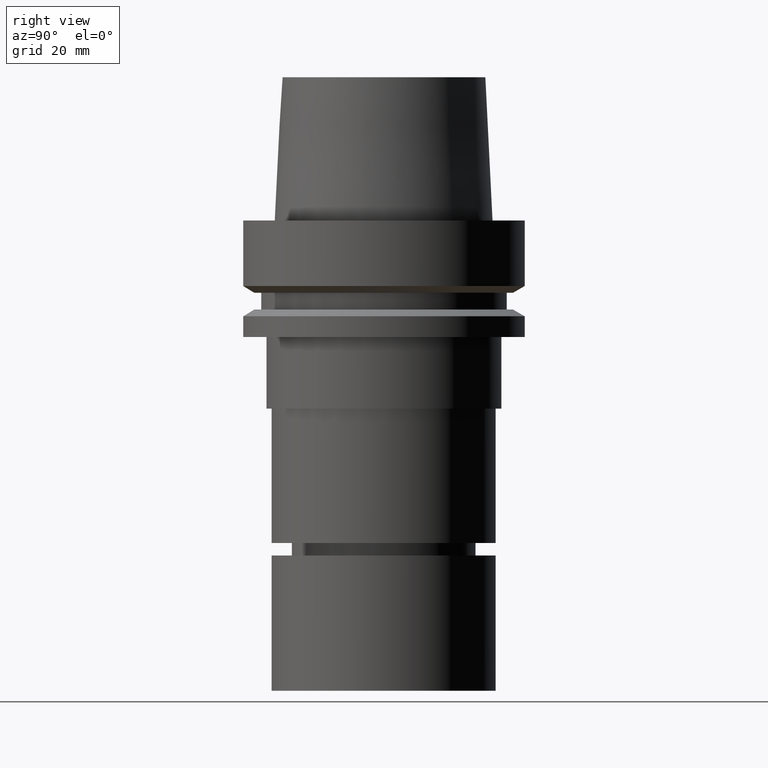
[diagram: clean part render]
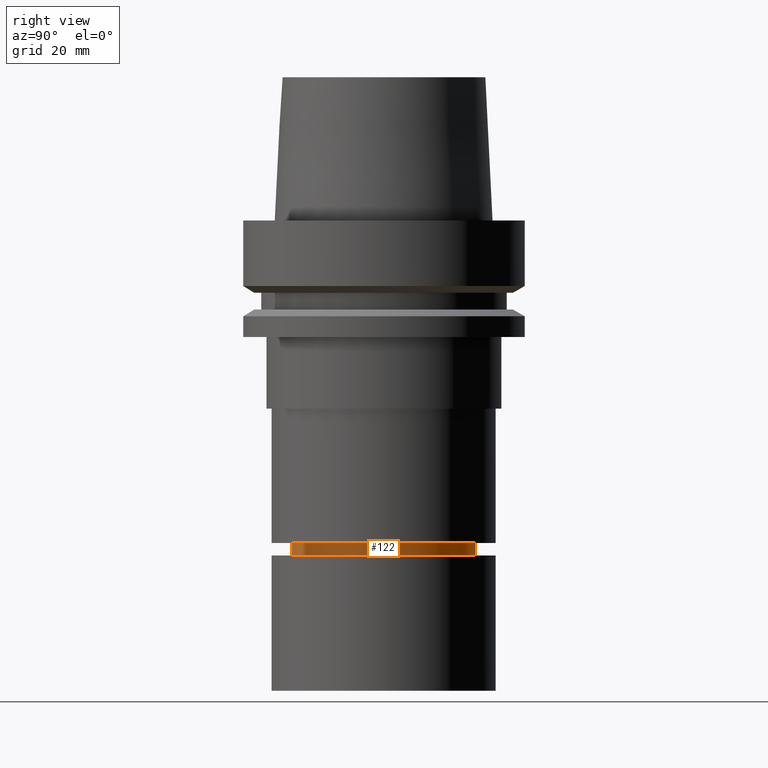
[diagram: same view with one face highlighted and labeled with its STEP entity id]
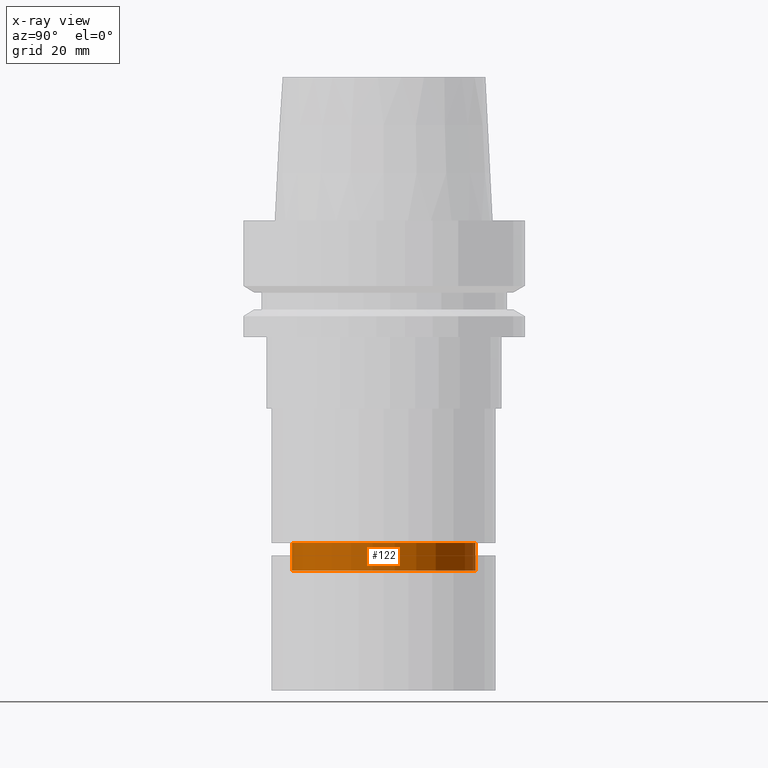
[diagram: x-ray of the same camera — body ghosted, the highlighted face saturated]
A machine part, right view. The second image highlights one B-rep face of the part: STEP entity #122.
The next image is the same camera in x-ray: the body ghosted, the highlighted face saturated — about 0% of this face is hidden behind the body in this view.
In plain terms, the highlighted cylindrical surface (bore or boss wall) has radius 20.5 mm, axis along (-0, -0, 1).
Its self-contained STEP definition (entity closure, byte-faithful):
#122=ADVANCED_FACE('Unnamed[1]',(#276,#277),#278,.T.);
#171=EDGE_CURVE('Unnamed[1]',#355,#355,#356,.T.);
#179=EDGE_CURVE('Unnamed[1]',#368,#368,#369,.T.);
#276=FACE_BOUND('',#484,.T.);
#277=FACE_BOUND('',#485,.T.);
#278=CYLINDRICAL_SURFACE('',#486,20.4999999999961);
#355=VERTEX_POINT('',#581);
#356=CIRCLE('',#582,20.4999999999911);
#368=VERTEX_POINT('',#597);
#369=CIRCLE('',#598,20.5000000000012);
#484=EDGE_LOOP('',(#691));
#485=EDGE_LOOP('',(#692));
#486=AXIS2_PLACEMENT_3D('',#693,#694,#695);
#581=CARTESIAN_POINT('',(4.4087381252738E-015,20.4999999999911,-72.0001575694042));
#582=AXIS2_PLACEMENT_3D('',#784,#785,#786);
#597=CARTESIAN_POINT('',(4.78907208101742E-015,20.5000000000012,-78.211482434801));
#598=AXIS2_PLACEMENT_3D('',#799,#800,#801);
#691=ORIENTED_EDGE('',*,*,#171,.F.);
#692=ORIENTED_EDGE('',*,*,#179,.T.);
#693=CARTESIAN_POINT('',(4.59890510314561E-015,9.19781020629122E-015,-75.1058200021026));
#694=DIRECTION('',(-6.12323399573677E-017,-1.22464679914735E-016,1.0));
#695=DIRECTION('',(-1.23259516440783E-032,1.0,1.22464679914735E-016));
#784=CARTESIAN_POINT('',(4.4087381252738E-015,8.81747625054759E-015,-72.0001575694042));
#785=DIRECTION('',(-6.12323399573677E-017,-1.22464679914735E-016,1.0));
#786=DIRECTION('',(-1.23259516440783E-032,1.0,1.22464679914735E-016));
#799=CARTESIAN_POINT('',(4.78907208101742E-015,9.57814416203485E-015,-78.211482434801));
#800=DIRECTION('',(-6.12323399573677E-017,-1.22464679914735E-016,1.0));
#801=DIRECTION('',(-1.23259516440783E-032,1.0,1.22464679914735E-016));